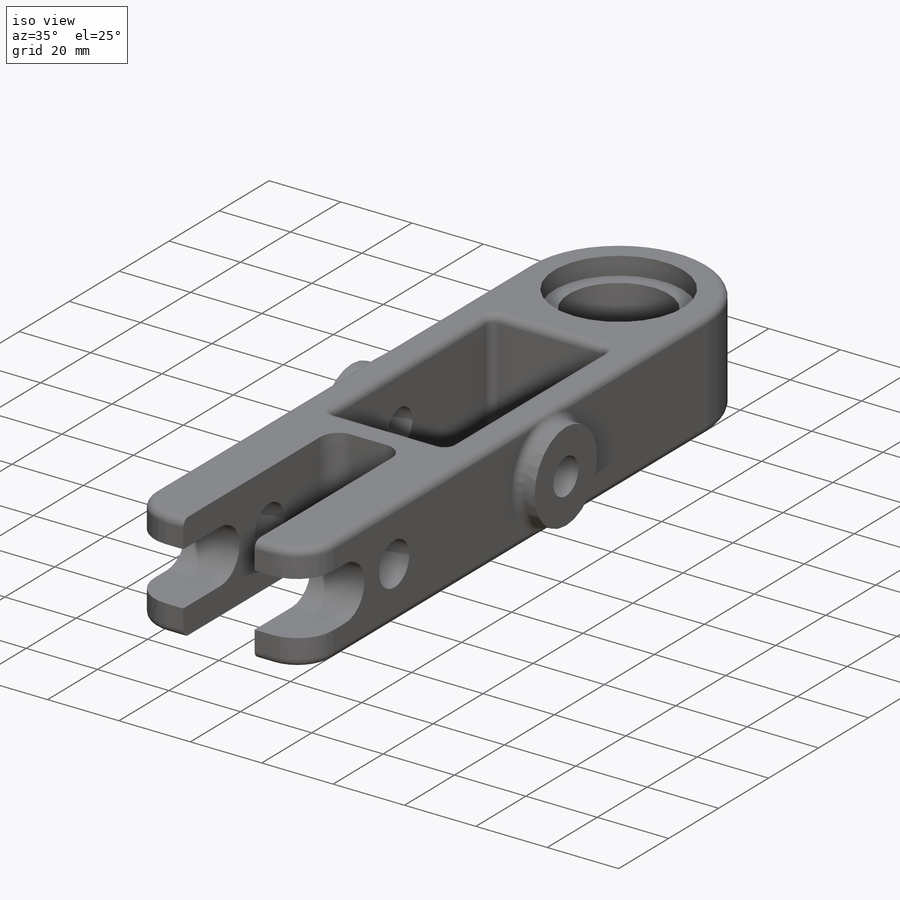
[diagram: iso view]
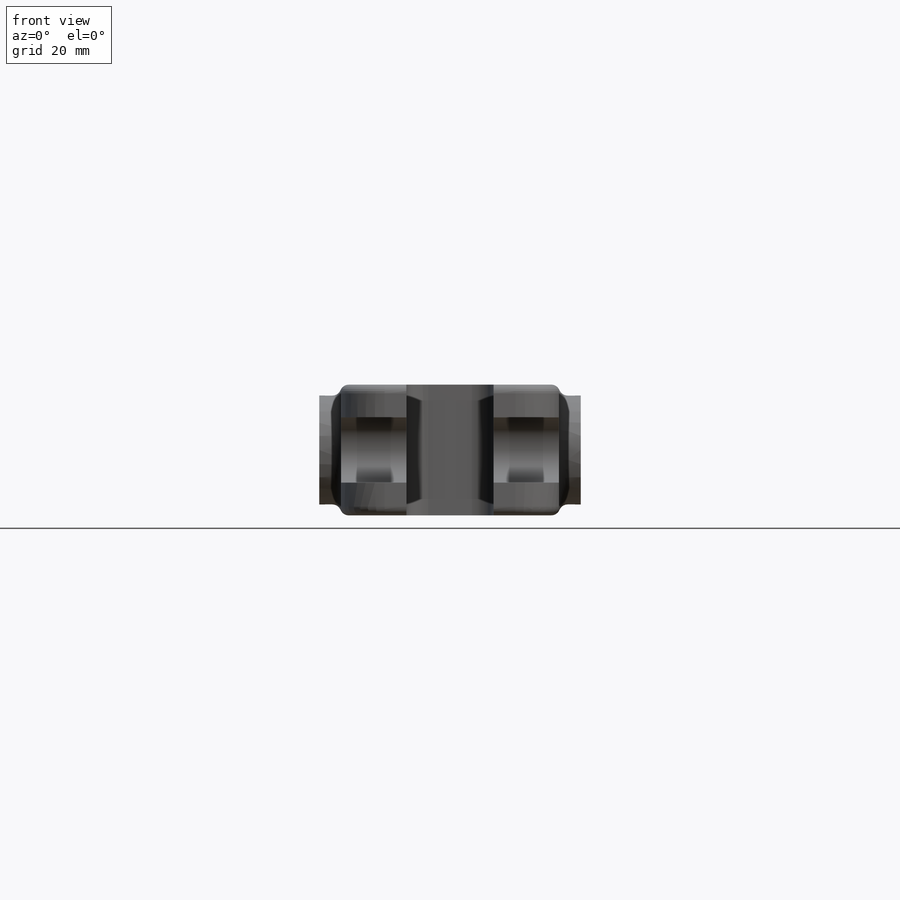
[diagram: front view]
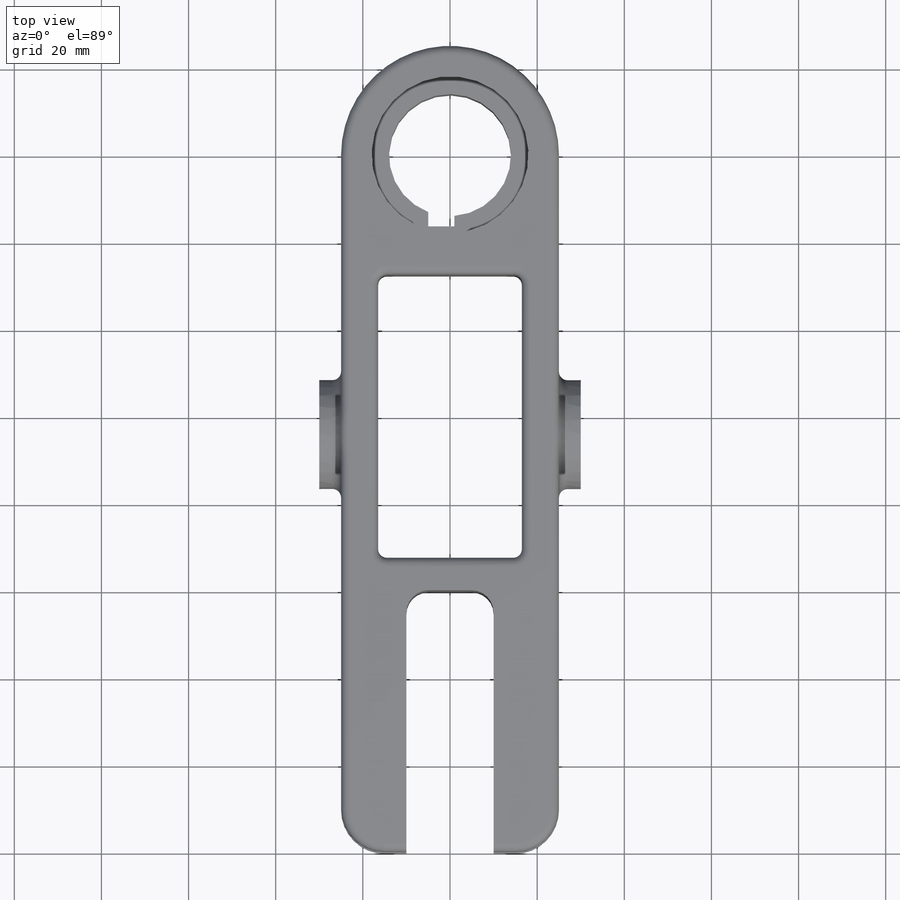
[diagram: top view]
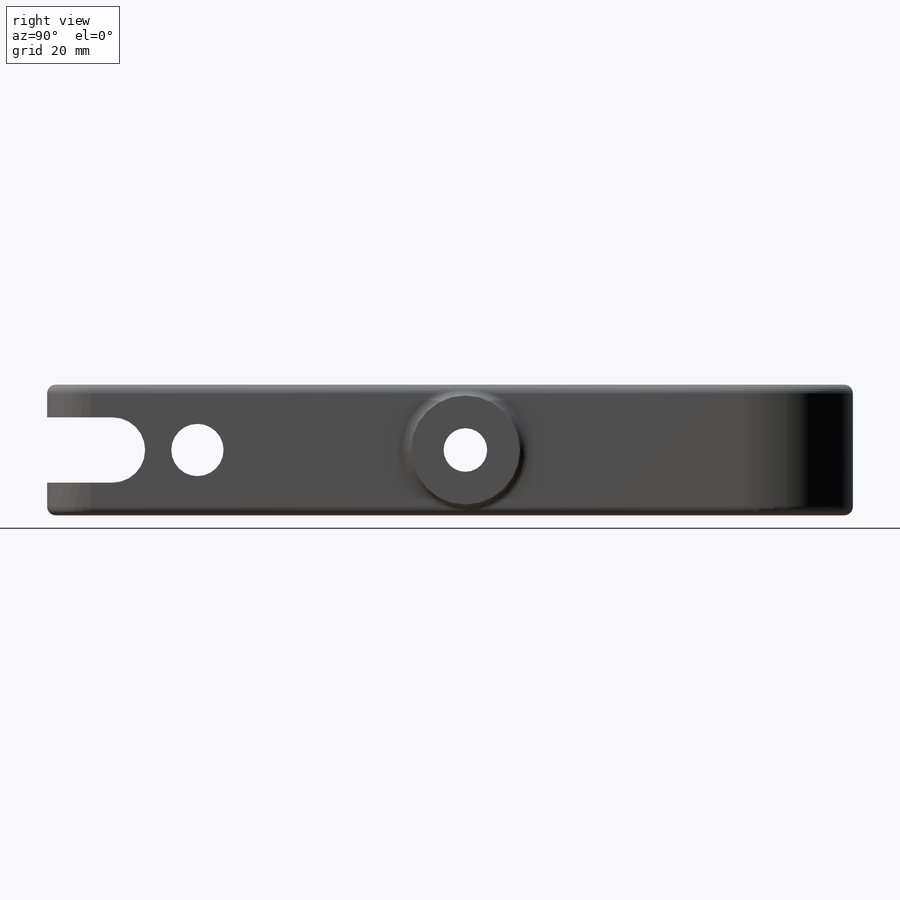
[diagram: right view]
SOLIDWORKS PART (.sldprt)
format: sldprt  version: not decoded by parser v0  size: 594,944 bytes
history: native  units: mm
features: sketch x11, cut_extrude x9, fillet x3, extrude x2, mirror x2, material x1 + 1 further entry (+12 scaffold rows collapsed)
feature tree (41):
  scaffold x12  (default folders/planes/origin — collapsed)
  material  "Copper"
  "Design Table"
  sketch  "Sketch1"  dims[c1.D1=25.0mm c1.D3=10.0mm c1.D2=~82.476092mm c2.D3=~82.476092mm c2.D2=80.0mm]
  extrude  "Base"  Depth=30mm
  sketch  "Sketch2"  dims[D1=5.0mm D2=60.0mm D3=20.0mm]
  cut_extrude  "Front Slot"  [1 undecoded]
  sketch  "Sketch3"  dims[D1=15.0mm D2=15.0mm]
  cut_extrude  "Fork Slot"  [1 undecoded]
  sketch  "Sketch4"  dims[D2=12.0mm D1=12.0mm D3=12.0mm]
  cut_extrude  "Bottom Mount Hole"  [1 undecoded]
  sketch  "Sketch5"  dims[BoreDiameter=28.0mm]
  cut_extrude  "Top Bore"  [1 undecoded]
  sketch  "Sketch6"  dims[D1=36.0mm]
  cut_extrude  "Pocket"  Depth=5mm
  mirror  "Mirror Pocket"
  sketch  "Sketch7"  dims[c1.D1=5.0mm c1.D2=6.0mm c1.D3=12.0mm c2.D3=90.0deg c3.D3=12.0mm]
  cut_extrude  "Keyway"  [1 undecoded]
  sketch  "Sketch8"  dims[D1=2.0mm D2=100.0mm D3=65.0mm D4=33.0mm]
  cut_extrude  "LightPocket"  [1 undecoded]
  sketch  "Sketch9"  dims[D1=25.0mm D2=10.0mm D3=16.0mm]
  extrude  "Boss-Extrude2"  Depth=5mm
  cut_extrude  "Cut-Extrude8"  [1 undecoded]
  sketch  "Sketch9<2>"
  mirror  "Mirror2"
  fillet  "Fillet1"  Radius=2mm
  fillet  "Fillet2"  Radius=2mm
  fillet  "Fillet3"  Radius=2mm
  sketch  "Sketch10"  dims[D1=24.0mm]
  cut_extrude  "Cut-Extrude9"  [1 undecoded]
decode coverage: 16 of 27 modeling features carry decoded parameters; 1 rows unclassified (native names shown)
note: ~ marks probable driven/reference dimensions
note: 8 parameter values undecoded
summary: no parameter record found for 8 features
note: suppression state not decoded; provenance and decode notes live in map.json
